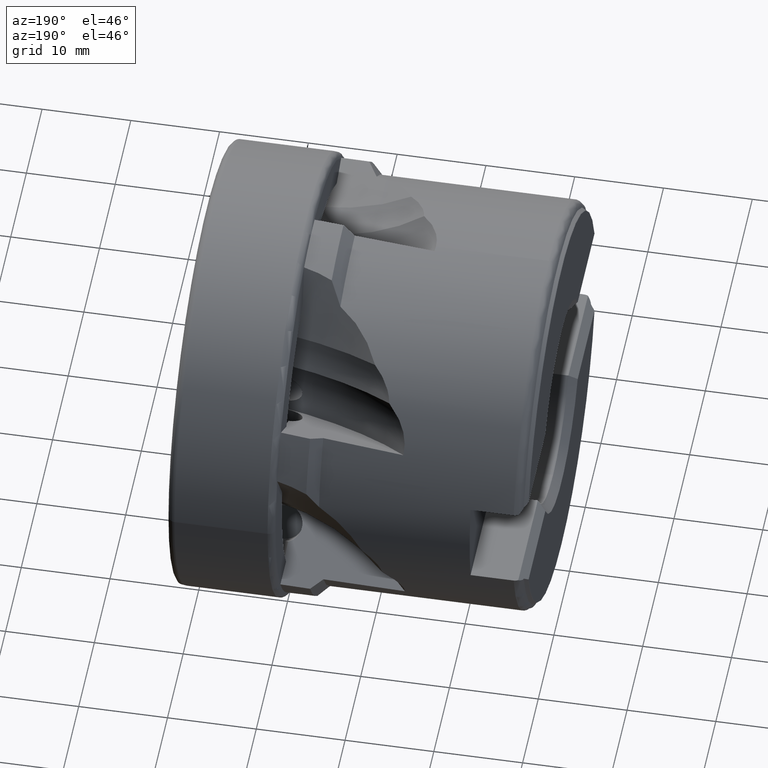
[diagram: clean part render]
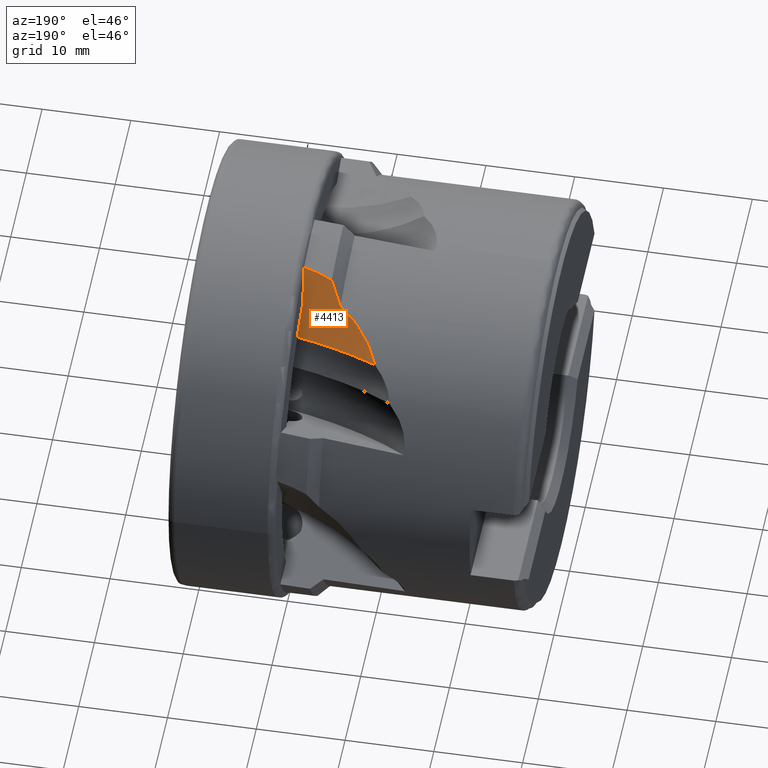
[diagram: same view with one face highlighted and labeled with its STEP entity id]
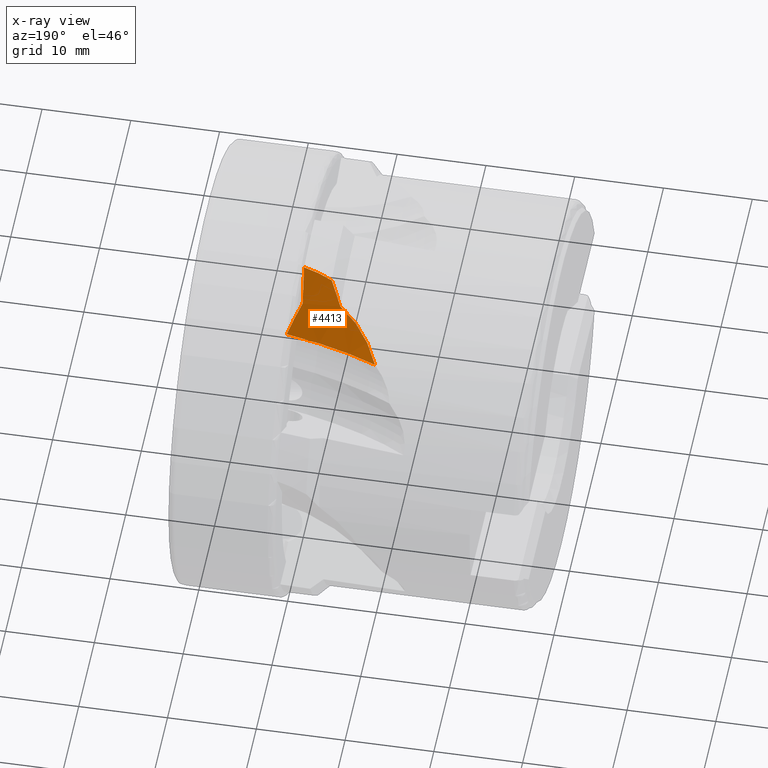
[diagram: x-ray of the same camera — body ghosted, the highlighted face saturated]
A machine part, auxiliary view. The second image highlights one B-rep face of the part: STEP entity #4413.
The next image is the same camera in x-ray: the body ghosted, the highlighted face saturated — about 0% of this face is hidden behind the body in this view.
In plain terms, the highlighted cylindrical surface (partial cylindrical patch) has radius 23.5167 mm, axis along (0.0872, 0.4981, -0.8627).
Its self-contained STEP definition (entity closure, byte-faithful):
#2 = B_SPLINE_CURVE_WITH_KNOTS ( 'NONE', 3,
 ( #4693, #4688, #4687, #4694, #4695, #4696, #4697, #4698, #4699, #4700 ),
 .UNSPECIFIED., .F., .F.,
 ( 4, 2, 2, 2, 4 ),
 ( 2.444667944461300500E-016, 0.003916999729643063000, 0.004896249662053766100, 0.005875499594464470900, 0.007833999459285864000 ),
 .UNSPECIFIED. ) ;
#192 = EDGE_CURVE ( 'NONE', #1590, #1571, #2, .T. ) ;
#336 = EDGE_CURVE ( 'NONE', #1742, #1738, #3827, .T. ) ;
#380 = EDGE_CURVE ( 'NONE', #1738, #3208, #3629, .T. ) ;
#383 = EDGE_CURVE ( 'NONE', #3208, #1590, #3619, .T. ) ;
#671 = EDGE_CURVE ( 'NONE', #2920, #1571, #5208, .T. ) ;
#672 = EDGE_CURVE ( 'NONE', #2920, #2925, #2361, .T. ) ;
#673 = EDGE_CURVE ( 'NONE', #2925, #1742, #2363, .T. ) ;
#1419 = AXIS2_PLACEMENT_3D ( 'NONE', #6297, #6298, #6299 ) ;
#1571 = VERTEX_POINT ( 'NONE', #6553 ) ;
#1590 = VERTEX_POINT ( 'NONE', #6569 ) ;
#1738 = VERTEX_POINT ( 'NONE', #6676 ) ;
#1742 = VERTEX_POINT ( 'NONE', #6680 ) ;
#2361 = B_SPLINE_CURVE_WITH_KNOTS ( 'NONE', 3,
 ( #6287, #6295, #6300, #6301 ),
 .UNSPECIFIED., .F., .F.,
 ( 4, 4 ),
 ( 1.011254863233547500E-006, 0.004085261212677176800 ),
 .UNSPECIFIED. ) ;
#2363 = B_SPLINE_CURVE_WITH_KNOTS ( 'NONE', 3,
 ( #6288, #6291, #6304, #6305 ),
 .UNSPECIFIED., .F., .F.,
 ( 4, 4 ),
 ( 4.166116774187963300E-006, 0.004117374130093957300 ),
 .UNSPECIFIED. ) ;
#2446 = ORIENTED_EDGE ( 'NONE', *, *, #671, .T. ) ;
#2448 = ORIENTED_EDGE ( 'NONE', *, *, #383, .F. ) ;
#2458 = ORIENTED_EDGE ( 'NONE', *, *, #336, .F. ) ;
#2460 = ORIENTED_EDGE ( 'NONE', *, *, #192, .F. ) ;
#2462 = ORIENTED_EDGE ( 'NONE', *, *, #673, .F. ) ;
#2472 = ORIENTED_EDGE ( 'NONE', *, *, #380, .F. ) ;
#2484 = ORIENTED_EDGE ( 'NONE', *, *, #672, .F. ) ;
#2920 = VERTEX_POINT ( 'NONE', #6774 ) ;
#2925 = VERTEX_POINT ( 'NONE', #6778 ) ;
#3124 = EDGE_LOOP ( 'NONE', ( #2484, #2446, #2460, #2448, #2472, #2458, #2462 ) ) ;
#3208 = VERTEX_POINT ( 'NONE', #6872 ) ;
#3619 = B_SPLINE_CURVE_WITH_KNOTS ( 'NONE', 3,
 ( #4516, #4513, #4526, #4527 ),
 .UNSPECIFIED., .F., .F.,
 ( 4, 4 ),
 ( 4.337803524941492400E-007, 0.003057512152702140500 ),
 .UNSPECIFIED. ) ;
#3629 = B_SPLINE_CURVE_WITH_KNOTS ( 'NONE', 3,
 ( #4508, #4509, #4514, #4515 ),
 .UNSPECIFIED., .F., .F.,
 ( 4, 4 ),
 ( 0.001199629116985053800, 0.004717761924917676300 ),
 .UNSPECIFIED. ) ;
#3827 = B_SPLINE_CURVE_WITH_KNOTS ( 'NONE', 3,
 ( #4185, #4158, #4182, #4187 ),
 .UNSPECIFIED., .F., .F.,
 ( 4, 4 ),
 ( 3.540372110010051200E-006, 5.304162665655924700E-005 ),
 .UNSPECIFIED. ) ;
#4158 = CARTESIAN_POINT ( 'NONE',  ( -11.18685624228969300, 6.193977423944444300, 23.47359713417969500 ) ) ;
#4182 = CARTESIAN_POINT ( 'NONE',  ( -11.18565802510592100, 6.185276241411679100, 23.48779019947703600 ) ) ;
#4185 = CARTESIAN_POINT ( 'NONE',  ( -11.18780614878581200, 6.202673036638391800, 23.45933395918650500 ) ) ;
#4187 = CARTESIAN_POINT ( 'NONE',  ( -11.18421578562621500, 6.176569802666851000, 23.50191450654146400 ) ) ;
#4413 = ADVANCED_FACE ( 'NONE', ( #8502 ), #8504, .F. ) ;
#4508 = CARTESIAN_POINT ( 'NONE',  ( -11.18421578562621500, 6.176569802666851000, 23.50191450654146400 ) ) ;
#4509 = CARTESIAN_POINT ( 'NONE',  ( -12.32871441660803500, 6.437612417681340700, 23.43330954533037400 ) ) ;
#4513 = CARTESIAN_POINT ( 'NONE',  ( -14.96983007475296300, 7.909902199546705100, 22.49242165571564900 ) ) ;
#4514 = CARTESIAN_POINT ( 'NONE',  ( -13.43514701625330200, 6.814696568516134300, 23.33074132762880000 ) ) ;
#4515 = CARTESIAN_POINT ( 'NONE',  ( -14.50000000000005200, 7.313494160441369900, 23.17332093518725200 ) ) ;
#4516 = CARTESIAN_POINT ( 'NONE',  ( -14.50000000000005200, 7.313494160441369900, 23.17332093518725200 ) ) ;
#4526 = CARTESIAN_POINT ( 'NONE',  ( -15.40442697484403200, 8.523281822487307500, 21.80444238866417500 ) ) ;
#4527 = CARTESIAN_POINT ( 'NONE',  ( -15.79999999999993100, 9.148343786743179600, 21.10231754949110100 ) ) ;
#4687 = CARTESIAN_POINT ( 'NONE',  ( -17.82944098927096700, 10.65807751593783700, 20.40777684349899700 ) ) ;
#4688 = CARTESIAN_POINT ( 'NONE',  ( -16.88285177859732000, 9.847780608502926500, 20.79909547506446200 ) ) ;
#4693 = CARTESIAN_POINT ( 'NONE',  ( -15.79999999999993100, 9.148343786743179600, 21.10231754949110100 ) ) ;
#4694 = CARTESIAN_POINT ( 'NONE',  ( -18.84773348388937800, 11.77715038149606600, 19.75767514520595500 ) ) ;
#4695 = CARTESIAN_POINT ( 'NONE',  ( -19.04350624291809900, 12.00697097385150900, 19.61905324407125700 ) ) ;
#4696 = CARTESIAN_POINT ( 'NONE',  ( -19.41280694686039600, 12.46948698628853000, 19.32838576962382900 ) ) ;
#4697 = CARTESIAN_POINT ( 'NONE',  ( -19.58704583337814900, 12.70288539789485300, 19.17596086908865500 ) ) ;
#4698 = CARTESIAN_POINT ( 'NONE',  ( -20.07991760698128300, 13.40781690573795300, 18.69635088892176400 ) ) ;
#4699 = CARTESIAN_POINT ( 'NONE',  ( -20.36880737631093300, 13.88405687836119800, 18.34688768142108400 ) ) ;
#4700 = CARTESIAN_POINT ( 'NONE',  ( -20.62045599612191500, 14.36256087437861800, 17.96432144918845700 ) ) ;
#5208 = CIRCLE ( 'NONE', #1419, 23.51665016500032100 ) ;
#6287 = CARTESIAN_POINT ( 'NONE',  ( -9.907739559764204200, 10.07561564545303800, 16.57148543601550700 ) ) ;
#6288 = CARTESIAN_POINT ( 'NONE',  ( -11.40432091562180100, 8.344648171946195300, 19.95454522998679500 ) ) ;
#6291 = CARTESIAN_POINT ( 'NONE',  ( -11.33849374108256400, 7.629427908861795300, 21.12244923167871500 ) ) ;
#6295 = CARTESIAN_POINT ( 'NONE',  ( -10.34912455616467500, 9.471054554495525600, 17.71048984740711400 ) ) ;
#6297 = CARTESIAN_POINT ( 'NONE',  ( -6.652490464055198900, 30.10166530444590900, 28.46238630026658700 ) ) ;
#6298 = DIRECTION ( 'NONE',  ( 0.08715574274765836000, 0.4980973490458647800, -0.8627299156628255300 ) ) ;
#6299 = DIRECTION ( 'NONE',  ( 0.0000000000000000000, 0.8660254037844433700, 0.4999999999999920100 ) ) ;
#6300 = CARTESIAN_POINT ( 'NONE',  ( -10.85459389990453400, 8.893739942360479500, 18.83508636645885300 ) ) ;
#6301 = CARTESIAN_POINT ( 'NONE',  ( -11.40432091562180100, 8.344648171946195300, 19.95454522998679500 ) ) ;
#6304 = CARTESIAN_POINT ( 'NONE',  ( -11.26564578426166500, 6.915230878216458000, 22.29054487645505500 ) ) ;
#6305 = CARTESIAN_POINT ( 'NONE',  ( -11.18780614878581200, 6.202673036638391800, 23.45933395918650500 ) ) ;
#6553 = CARTESIAN_POINT ( 'NONE',  ( -20.62045599612191500, 14.36256087437861800, 17.96432144918845700 ) ) ;
#6569 = CARTESIAN_POINT ( 'NONE',  ( -15.79999999999993100, 9.148343786743179600, 21.10231754949110100 ) ) ;
#6676 = CARTESIAN_POINT ( 'NONE',  ( -11.18421578562621500, 6.176569802666851000, 23.50191450654146400 ) ) ;
#6680 = CARTESIAN_POINT ( 'NONE',  ( -11.18780614878581200, 6.202673036638391800, 23.45933395918650500 ) ) ;
#6774 = CARTESIAN_POINT ( 'NONE',  ( -9.907739559764204200, 10.07561564545303800, 16.57148543601550700 ) ) ;
#6778 = CARTESIAN_POINT ( 'NONE',  ( -11.40432091562180100, 8.344648171946195300, 19.95454522998679500 ) ) ;
#6872 = CARTESIAN_POINT ( 'NONE',  ( -14.50000000000005200, 7.313494160441369900, 23.17332093518725200 ) ) ;
#8212 = AXIS2_PLACEMENT_3D ( 'NONE', #9011, #9012, #9009 ) ;
#8502 = FACE_OUTER_BOUND ( 'NONE', #3124, .T. ) ;
#8504 = CYLINDRICAL_SURFACE ( 'NONE', #8212, 23.51665016500032800 ) ;
#9009 = DIRECTION ( 'NONE',  ( 0.0000000000000000000, 0.8660254037844432600, 0.4999999999999920100 ) ) ;
#9011 = CARTESIAN_POINT ( 'NONE',  ( -5.768592202633575600, 35.15316698363030000, 19.71292873739953700 ) ) ;
#9012 = DIRECTION ( 'NONE',  ( 0.08715574274765836000, 0.4980973490458647800, -0.8627299156628255300 ) ) ;